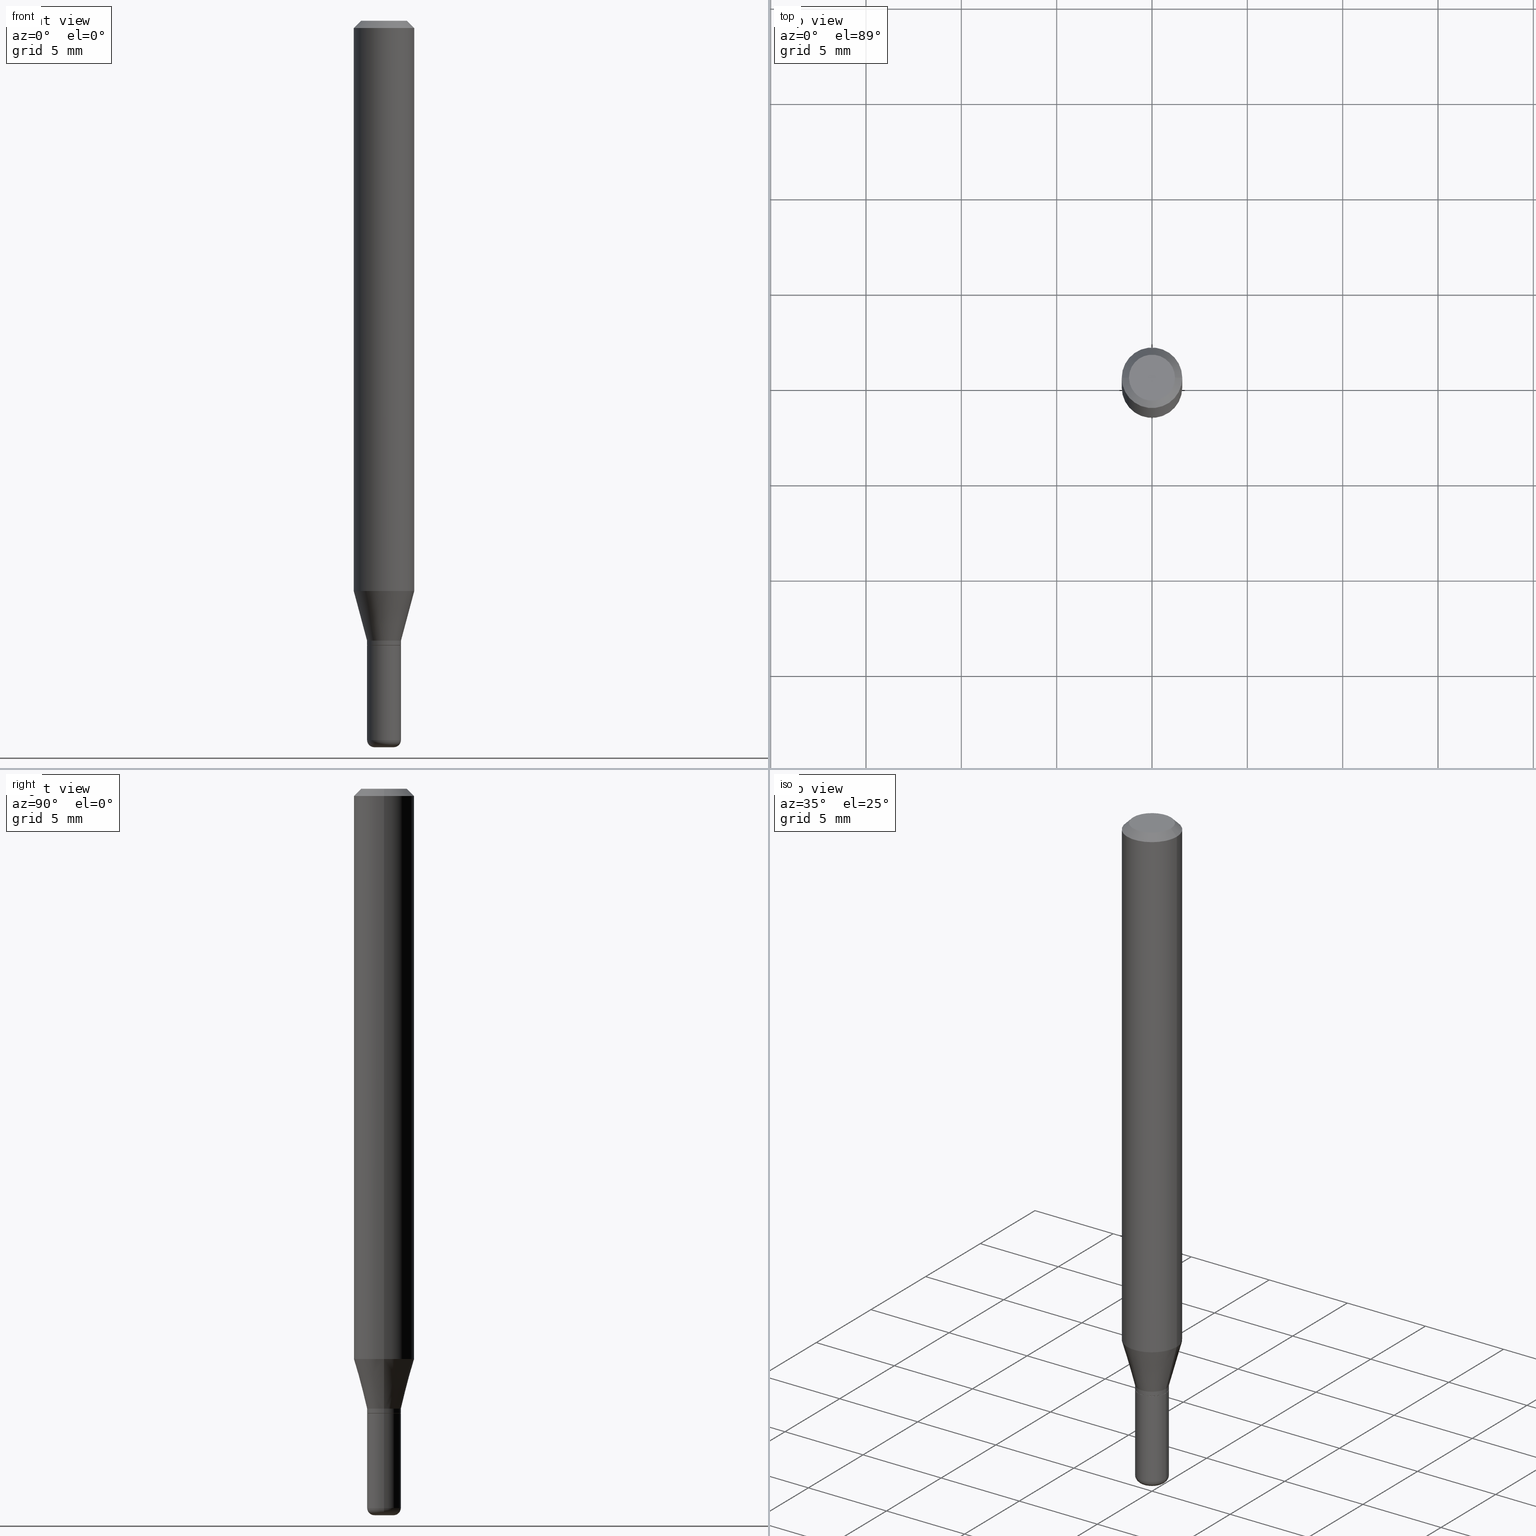
[diagram: canonical four-view strip — front | top / right | iso, engineering-drawing reading convention]
A machine part, canonical four-view strip (front | top / right | iso — engineering-drawing reading convention). The complete STEP part file that produces these views, byte-faithful:
ISO-10303-21;
HEADER;
FILE_DESCRIPTION (( 'STEP AP203' ),
    '1' );
FILE_NAME ('08691.STEP',
    '2024-02-29T20:24:12',
    ( '' ),
    ( '' ),
    'SwSTEP 2.0',
    'SolidWorks 2023',
    '' );
FILE_SCHEMA (( 'CONFIG_CONTROL_DESIGN' ));
ENDSEC;

DATA;
#1 = ORIENTED_EDGE ( 'NONE', *, *, #502, .T. ) ;
#2 = VECTOR ( 'NONE', #376, 39.37007874015748854 ) ;
#3 = PERSON_AND_ORGANIZATION_ROLE ( 'classification_officer' ) ;
#4 = AXIS2_PLACEMENT_3D ( 'NONE', #401, #397, #490 ) ;
#5 = CARTESIAN_POINT ( 'NONE',  ( 0.000000000000000000, 0.000000000000000000, 0.000000000000000000 ) ) ;
#6 = ADVANCED_FACE ( 'NONE', ( #446 ), #241, .T. ) ;
#7 = DIRECTION ( 'NONE',  ( -2.445468806185136877E-29, 3.491481338843145188E-15, 1.000000000000000000 ) ) ;
#8 = ORIENTED_EDGE ( 'NONE', *, *, #171, .F. ) ;
#9 = DIRECTION ( 'NONE',  ( 1.000000000000000000, -6.982962677686273021E-15, 0.000000000000000000 ) ) ;
#10 = CONICAL_SURFACE ( 'NONE', #136, 0.03499999999999998251, 0.2617993877991494633 ) ;
#11 = AXIS2_PLACEMENT_3D ( 'NONE', #61, #220, #9 ) ;
#12 = CARTESIAN_POINT ( 'NONE',  ( 3.154654759978826367E-29, -4.504010927107658279E-15, -1.290000000000000258 ) ) ;
#13 = CARTESIAN_POINT ( 'NONE',  ( 3.668203209277632395E-31, -5.237222008264614861E-17, -0.01499999999999970281 ) ) ;
#14 = APPROVAL_ROLE ( '' ) ;
#15 = ORIENTED_EDGE ( 'NONE', *, *, #337, .F. ) ;
#16 = CARTESIAN_POINT ( 'NONE',  ( -6.680649051745406845E-45, 9.538196290434862081E-31, 2.731847993664263218E-16 ) ) ;
#17 = APPROVAL ( #419, 'UNSPECIFIED' ) ;
#18 = DIRECTION ( 'NONE',  ( -2.445468806185136597E-29, 3.491481338843145583E-15, 1.000000000000000000 ) ) ;
#19 = CIRCLE ( 'NONE', #368, 0.03499999999999998945 ) ;
#20 = ORIENTED_EDGE ( 'NONE', *, *, #322, .T. ) ;
#21 = ORIENTED_EDGE ( 'NONE', *, *, #502, .F. ) ;
#22 = DIRECTION ( 'NONE',  ( -1.000000000000000000, 6.982962677686266711E-15, 0.000000000000000000 ) ) ;
#23 = VERTEX_POINT ( 'NONE', #96 ) ;
#24 = FACE_OUTER_BOUND ( 'NONE', #121, .T. ) ;
#25 = FACE_OUTER_BOUND ( 'NONE', #174, .T. ) ;
#26 = ORIENTED_EDGE ( 'NONE', *, *, #82, .F. ) ;
#27 = CARTESIAN_POINT ( 'NONE',  ( -0.03499999999999999639, -4.253575228922202278E-15, -1.289500000000000313 ) ) ;
#28 = CC_DESIGN_PERSON_AND_ORGANIZATION_ASSIGNMENT ( #85, #3, ( #321 ) ) ;
#29 = AXIS2_PLACEMENT_3D ( 'NONE', #5, #459, #373 ) ;
#30 = AXIS2_PLACEMENT_3D ( 'NONE', #274, #232, #425 ) ;
#31 = ORIENTED_EDGE ( 'NONE', *, *, #310, .T. ) ;
#32 = LOCAL_TIME ( 15, 24, 12.00000000000000000, #382 ) ;
#33 = CARTESIAN_POINT ( 'NONE',  ( 3.668203209277632395E-31, -5.237222008264614861E-17, -0.01499999999999970281 ) ) ;
#34 = DIRECTION ( 'NONE',  ( -2.445468806185136597E-29, 3.491481338843145583E-15, 1.000000000000000000 ) ) ;
#35 = ORIENTED_EDGE ( 'NONE', *, *, #109, .T. ) ;
#36 = EDGE_LOOP ( 'NONE', ( #328, #35 ) ) ;
#37 = VERTEX_POINT ( 'NONE', #297 ) ;
#38 = ADVANCED_FACE ( 'NONE', ( #380 ), #305, .T. ) ;
#39 = FACE_OUTER_BOUND ( 'NONE', #264, .T. ) ;
#40 = VECTOR ( 'NONE', #351, 39.37007874015748143 ) ;
#41 = APPLICATION_CONTEXT ( 'configuration controlled 3d designs of mechanical parts and assemblies' ) ;
#42 = EDGE_CURVE ( 'NONE', #71, #145, #495, .T. ) ;
#43 =( NAMED_UNIT ( * ) SI_UNIT ( $, .STERADIAN. ) SOLID_ANGLE_UNIT ( ) );
#44 = SECURITY_CLASSIFICATION_LEVEL ( 'unclassified' ) ;
#45 = DIRECTION ( 'NONE',  ( -2.445468806185136597E-29, 3.491481338843145583E-15, 1.000000000000000000 ) ) ;
#46 = FACE_OUTER_BOUND ( 'NONE', #469, .T. ) ;
#47 = AXIS2_PLACEMENT_3D ( 'NONE', #333, #208, #280 ) ;
#48 = VECTOR ( 'NONE', #475, 39.37007874015748143 ) ;
#49 = AXIS2_PLACEMENT_3D ( 'NONE', #58, #426, #22 ) ;
#50 = DIRECTION ( 'NONE',  ( 1.000000000000000000, -6.982962677686282488E-15, 0.000000000000000000 ) ) ;
#51 = ORIENTED_EDGE ( 'NONE', *, *, #42, .F. ) ;
#52 = LINE ( 'NONE', #169, #273 ) ;
#53 = CC_DESIGN_PERSON_AND_ORGANIZATION_ASSIGNMENT ( #157, #387, ( #377 ) ) ;
#54 = DIRECTION ( 'NONE',  ( 0.2588190451025207395, 1.565188264969626109E-15, 0.9659258262890682012 ) ) ;
#55 = CARTESIAN_POINT ( 'NONE',  ( 0.06250000000000000000, -4.811533449433669144E-16, -0.01499999999999970281 ) ) ;
#56 = CARTESIAN_POINT ( 'NONE',  ( 3.130200071916974821E-29, -4.469096113719226630E-15, -1.280000000000000027 ) ) ;
#57 = CIRCLE ( 'NONE', #211, 0.03499999999999998251 ) ;
#58 = CARTESIAN_POINT ( 'NONE',  ( 3.668203209277632395E-31, -5.237222008264614861E-17, -0.01499999999999970281 ) ) ;
#59 = PLANE ( 'NONE',  #473 ) ;
#60 = CARTESIAN_POINT ( 'NONE',  ( 3.154654759978826367E-29, -4.504010927107658279E-15, -1.290000000000000258 ) ) ;
#61 = CARTESIAN_POINT ( 'NONE',  ( 0.02000000000000000042, -5.324509041735797299E-15, -1.485000000000000098 ) ) ;
#62 = APPROVAL_DATE_TIME ( #416, #148 ) ;
#63 = ORIENTED_EDGE ( 'NONE', *, *, #171, .T. ) ;
#64 = VECTOR ( 'NONE', #301, 39.37007874015748143 ) ;
#65 = CARTESIAN_POINT ( 'NONE',  ( 3.316907271900976589E-16, 0.04750000000000000749, -2.925296391183627249E-17 ) ) ;
#66 = CONICAL_SURFACE ( 'NONE', #359, 0.03449999999999998901, 0.7853981633975507526 ) ;
#67 = ORIENTED_EDGE ( 'NONE', *, *, #135, .T. ) ;
#68 = LOCAL_TIME ( 15, 24, 12.00000000000000000, #213 ) ;
#69 = CARTESIAN_POINT ( 'NONE',  ( -0.06250000000000000000, 4.440892098500626162E-16, -3.074334431409316114E-30 ) ) ;
#70 = DIRECTION ( 'NONE',  ( 1.000000000000000000, -6.982962677686276966E-15, 0.000000000000000000 ) ) ;
#71 = VERTEX_POINT ( 'NONE', #102 ) ;
#72 = DIRECTION ( 'NONE',  ( -0.7071067811865479058, 2.468850131082261005E-15, -0.7071067811865471286 ) ) ;
#73 = AXIS2_PLACEMENT_3D ( 'NONE', #390, #217, #70 ) ;
#74 = AXIS2_PLACEMENT_3D ( 'NONE', #353, #438, #233 ) ;
#75 = CARTESIAN_POINT ( 'NONE',  ( -0.06250000000000000000, -3.666671295737530361E-15, -1.177368602791855734 ) ) ;
#76 = CONICAL_SURFACE ( 'NONE', #434, 0.03499999999999998251, 0.2617993877991494633 ) ;
#77 = ORIENTED_EDGE ( 'NONE', *, *, #251, .F. ) ;
#78 = ADVANCED_FACE ( 'NONE', ( #415 ), #10, .T. ) ;
#79 = DIRECTION ( 'NONE',  ( 1.000000000000000000, -6.982962677686266711E-15, 4.876176775795935793E-29 ) ) ;
#80 = CIRCLE ( 'NONE', #235, 0.04750000000000000749 ) ;
#81 = PRODUCT_DEFINITION_FORMATION_WITH_SPECIFIED_SOURCE ( 'ANY', '', #95, .NOT_KNOWN. ) ;
#82 = EDGE_CURVE ( 'NONE', #504, #178, #336, .T. ) ;
#83 = CARTESIAN_POINT ( 'NONE',  ( 0.000000000000000000, 0.000000000000000000, 0.000000000000000000 ) ) ;
#84 = ORIENTED_EDGE ( 'NONE', *, *, #355, .F. ) ;
#85 = PERSON_AND_ORGANIZATION ( #200, #137 ) ;
#86 = CARTESIAN_POINT ( 'NONE',  ( 3.668203209277704895E-29, -5.237222008264718177E-15, -1.500000000000000222 ) ) ;
#87 = DIRECTION ( 'NONE',  ( 2.438088387897960049E-29, -3.491481338843145188E-15, -1.000000000000000000 ) ) ;
#88 = DIRECTION ( 'NONE',  ( 0.000000000000000000, 0.000000000000000000, 1.000000000000000000 ) ) ;
#89 = AXIS2_PLACEMENT_3D ( 'NONE', #144, #354, #173 ) ;
#90 = CC_DESIGN_APPROVAL ( #327, ( #81 ) ) ;
#91 = ORIENTED_EDGE ( 'NONE', *, *, #139, .T. ) ;
#92 = EDGE_CURVE ( 'NONE', #221, #194, #372, .T. ) ;
#93 = DIRECTION ( 'NONE',  ( -1.000000000000000000, 6.982962677686265922E-15, -4.876176775795935793E-29 ) ) ;
#94 = CARTESIAN_POINT ( 'NONE',  ( -6.680649051745406845E-45, 9.538196290434862081E-31, 2.731847993664263218E-16 ) ) ;
#95 = PRODUCT ( '08691', '08691', '', ( #379 ) ) ;
#96 = CARTESIAN_POINT ( 'NONE',  ( 0.03449999999999998901, -4.744923139487834449E-15, -1.290000000000000258 ) ) ;
#97 = ORIENTED_EDGE ( 'NONE', *, *, #175, .F. ) ;
#98 = CARTESIAN_POINT ( 'NONE',  ( 0.06250000000000000000, -4.888073874380378612E-16, -0.01499999999999970281 ) ) ;
#99 = CARTESIAN_POINT ( 'NONE',  ( 3.154654759978826367E-29, -4.504010927107658279E-15, -1.290000000000000258 ) ) ;
#100 = DIRECTION ( 'NONE',  ( 1.000000000000000000, -6.982962677686265922E-15, 4.876176775795935793E-29 ) ) ;
#101 = LINE ( 'NONE', #427, #161 ) ;
#102 = CARTESIAN_POINT ( 'NONE',  ( -0.03449999999999998901, -4.256224456096312690E-15, -1.290000000000000258 ) ) ;
#103 = PERSON_AND_ORGANIZATION_ROLE ( 'design_owner' ) ;
#104 = CIRCLE ( 'NONE', #290, 0.02000000000000000389 ) ;
#105 = APPROVAL_PERSON_ORGANIZATION ( #256, #17, #357 ) ;
#106 = EDGE_LOOP ( 'NONE', ( #91, #366, #472, #84 ) ) ;
#107 = FACE_OUTER_BOUND ( 'NONE', #282, .T. ) ;
#108 = CARTESIAN_POINT ( 'NONE',  ( 3.153432025575734126E-29, -4.502265186438236775E-15, -1.289500000000000313 ) ) ;
#109 = EDGE_CURVE ( 'NONE', #196, #111, #308, .T. ) ;
#110 = ORIENTED_EDGE ( 'NONE', *, *, #92, .T. ) ;
#111 = VERTEX_POINT ( 'NONE', #435 ) ;
#112 = DIRECTION ( 'NONE',  ( -2.445468806185136597E-29, 3.491481338843145583E-15, 1.000000000000000000 ) ) ;
#113 = VECTOR ( 'NONE', #498, 39.37007874015748143 ) ;
#114 = EDGE_LOOP ( 'NONE', ( #369, #257, #352, #15 ) ) ;
#115 = LOCAL_TIME ( 15, 24, 12.00000000000000000, #294 ) ;
#116 = DIRECTION ( 'NONE',  ( -2.445468806185136877E-29, 3.491481338843145188E-15, 1.000000000000000000 ) ) ;
#117 = DIRECTION ( 'NONE',  ( -2.445468806185136597E-29, 3.491481338843145583E-15, 1.000000000000000000 ) ) ;
#118 = ADVANCED_FACE ( 'NONE', ( #25 ), #508, .T. ) ;
#119 = ORIENTED_EDGE ( 'NONE', *, *, #392, .T. ) ;
#120 = CARTESIAN_POINT ( 'NONE',  ( 3.153432025575734126E-29, -4.502265186438236775E-15, -1.289500000000000313 ) ) ;
#121 = EDGE_LOOP ( 'NONE', ( #514, #332, #8, #97 ) ) ;
#122 = CALENDAR_DATE ( 2024, 29, 2 ) ;
#123 = EDGE_CURVE ( 'NONE', #467, #405, #283, .T. ) ;
#124 = CIRCLE ( 'NONE', #409, 0.06250000000000000000 ) ;
#125 = VECTOR ( 'NONE', #116, 39.37007874015748143 ) ;
#126 = LOCAL_TIME ( 15, 24, 12.00000000000000000, #471 ) ;
#127 = CARTESIAN_POINT ( 'NONE',  ( 0.000000000000000000, 0.000000000000000000, 0.000000000000000000 ) ) ;
#128 = ORIENTED_EDGE ( 'NONE', *, *, #295, .T. ) ;
#129 = AXIS2_PLACEMENT_3D ( 'NONE', #197, #476, #279 ) ;
#130 = EDGE_CURVE ( 'NONE', #509, #178, #124, .T. ) ;
#131 = DIRECTION ( 'NONE',  ( -2.445468806185136597E-29, 3.491481338843145583E-15, 1.000000000000000000 ) ) ;
#132 = DATE_AND_TIME ( #335, #115 ) ;
#133 = DATE_AND_TIME ( #141, #32 ) ;
#134 = DIRECTION ( 'NONE',  ( 1.000000000000000000, -6.982962677686265133E-15, 0.000000000000000000 ) ) ;
#135 = EDGE_CURVE ( 'NONE', #23, #424, #278, .T. ) ;
#136 = AXIS2_PLACEMENT_3D ( 'NONE', #56, #212, #166 ) ;
#137 = ORGANIZATION ( 'UNSPECIFIED', 'UNSPECIFIED', '' ) ;
#138 = DIRECTION ( 'NONE',  ( 1.000000000000000000, -6.982962677686279332E-15, 4.883557194083117946E-29 ) ) ;
#139 = EDGE_CURVE ( 'NONE', #37, #504, #250, .T. ) ;
#140 = AXIS2_PLACEMENT_3D ( 'NONE', #86, #249, #50 ) ;
#141 = CALENDAR_DATE ( 2024, 29, 2 ) ;
#142 = CONICAL_SURFACE ( 'NONE', #49, 0.06250000000000000000, 0.7853981633974488341 ) ;
#143 = VERTEX_POINT ( 'NONE', #150 ) ;
#144 = CARTESIAN_POINT ( 'NONE',  ( 2.879218191509262057E-29, -4.110760505587592188E-15, -1.177368602791855734 ) ) ;
#145 = VERTEX_POINT ( 'NONE', #27 ) ;
#146 = LINE ( 'NONE', #507, #125 ) ;
#147 = EDGE_LOOP ( 'NONE', ( #1, #255 ) ) ;
#148 = APPROVAL ( #499, 'UNSPECIFIED' ) ;
#149 = FACE_OUTER_BOUND ( 'NONE', #114, .T. ) ;
#150 = CARTESIAN_POINT ( 'NONE',  ( -0.06250000000000000000, -1.637477152985056820E-15, -0.01499999999999970281 ) ) ;
#151 = AXIS2_PLACEMENT_3D ( 'NONE', #207, #331, #486 ) ;
#152 = ORIENTED_EDGE ( 'NONE', *, *, #139, .F. ) ;
#153 = CARTESIAN_POINT ( 'NONE',  ( -0.04750000000000000749, 3.578768372314221353E-16, 2.731847993664239060E-16 ) ) ;
#154 = CARTESIAN_POINT ( 'NONE',  ( 0.02000000000000000389, -5.376881261818443984E-15, -1.500000000000000222 ) ) ;
#155 = ORIENTED_EDGE ( 'NONE', *, *, #109, .F. ) ;
#156 = ORIENTED_EDGE ( 'NONE', *, *, #403, .F. ) ;
#157 = PERSON_AND_ORGANIZATION ( #200, #137 ) ;
#158 = ORIENTED_EDGE ( 'NONE', *, *, #470, .F. ) ;
#159 = CARTESIAN_POINT ( 'NONE',  ( -0.03499999999999999639, 2.486899575160350394E-16, -1.721627281589216757E-30 ) ) ;
#160 = EDGE_CURVE ( 'NONE', #178, #143, #468, .T. ) ;
#161 = VECTOR ( 'NONE', #383, 39.37007874015748143 ) ;
#162 = ORIENTED_EDGE ( 'NONE', *, *, #470, .T. ) ;
#163 = DIRECTION ( 'NONE',  ( -2.445468806185136597E-29, 3.491481338843145583E-15, 1.000000000000000000 ) ) ;
#164 = EDGE_CURVE ( 'NONE', #186, #143, #316, .T. ) ;
#165 = AXIS2_PLACEMENT_3D ( 'NONE', #349, #18, #344 ) ;
#166 = DIRECTION ( 'NONE',  ( 1.000000000000000000, -6.982962677686253300E-15, 0.000000000000000000 ) ) ;
#167 = ADVANCED_FACE ( 'NONE', ( #270 ), #76, .T. ) ;
#168 = CALENDAR_DATE ( 2024, 29, 2 ) ;
#169 = CARTESIAN_POINT ( 'NONE',  ( 0.03499999999999998251, -2.444036937190192264E-16, 1.706661871528576757E-30 ) ) ;
#170 = AXIS2_PLACEMENT_3D ( 'NONE', #371, #88, #299 ) ;
#171 = EDGE_CURVE ( 'NONE', #293, #143, #443, .T. ) ;
#172 = APPROVAL_STATUS ( 'not_yet_approved' ) ;
#173 = DIRECTION ( 'NONE',  ( 1.000000000000000000, -6.982962677686270655E-15, 0.000000000000000000 ) ) ;
#174 = EDGE_LOOP ( 'NONE', ( #323, #395, #362, #236 ) ) ;
#175 = EDGE_CURVE ( 'NONE', #509, #293, #441, .T. ) ;
#176 = DIRECTION ( 'NONE',  ( 1.000000000000000000, -6.982962677686253300E-15, 0.000000000000000000 ) ) ;
#177 = CARTESIAN_POINT ( 'NONE',  ( -0.03499999999999998251, -3.943538725970360852E-15, -1.280000000000000027 ) ) ;
#178 = VERTEX_POINT ( 'NONE', #75 ) ;
#179 = AXIS2_PLACEMENT_3D ( 'NONE', #127, #163, #79 ) ;
#180 = EDGE_LOOP ( 'NONE', ( #314, #437, #218, #436 ) ) ;
#181 = CARTESIAN_POINT ( 'NONE',  ( 0.03449999999999998901, -4.744923139487834449E-15, -1.290000000000000258 ) ) ;
#182 = DATE_AND_TIME ( #246, #68 ) ;
#183 = EDGE_CURVE ( 'NONE', #145, #424, #389, .T. ) ;
#184 = ORIENTED_EDGE ( 'NONE', *, *, #497, .T. ) ;
#185 = DIRECTION ( 'NONE',  ( -2.445468806185136597E-29, 3.491481338843145583E-15, 1.000000000000000000 ) ) ;
#186 = VERTEX_POINT ( 'NONE', #153 ) ;
#187 = ORIENTED_EDGE ( 'NONE', *, *, #337, .T. ) ;
#188 = CARTESIAN_POINT ( 'NONE',  ( 3.668203209277632395E-31, -5.237222008264614861E-17, -0.01499999999999970281 ) ) ;
#189 = CLOSED_SHELL ( 'NONE', ( #6, #338, #365, #38, #219, #417 ) ) ;
#190 = AXIS2_PLACEMENT_3D ( 'NONE', #33, #367, #192 ) ;
#191 = DIRECTION ( 'NONE',  ( -2.445468806185136597E-29, 3.491481338843145583E-15, 1.000000000000000000 ) ) ;
#192 = DIRECTION ( 'NONE',  ( -1.000000000000000000, 6.982962677686266711E-15, 0.000000000000000000 ) ) ;
#193 = EDGE_CURVE ( 'NONE', #194, #221, #104, .T. ) ;
#194 = VERTEX_POINT ( 'NONE', #154 ) ;
#195 = FACE_OUTER_BOUND ( 'NONE', #350, .T. ) ;
#196 = VERTEX_POINT ( 'NONE', #444 ) ;
#197 = CARTESIAN_POINT ( 'NONE',  ( 3.582686580359766038E-29, -5.359686688179453325E-15, -1.500000000000000222 ) ) ;
#198 = AXIS2_PLACEMENT_3D ( 'NONE', #65, #462, #214 ) ;
#199 = ORIENTED_EDGE ( 'NONE', *, *, #355, .T. ) ;
#200 = PERSON ( 'UNSPECIFIED', 'UNSPECIFIED', 'UNSPECIFIED', ('UNSPECIFIED'), ('UNSPECIFIED'), ('UNSPECIFIED') ) ;
#201 = ORIENTED_EDGE ( 'NONE', *, *, #287, .F. ) ;
#202 = CARTESIAN_POINT ( 'NONE',  ( -0.03449999999999998901, -4.258873683270423891E-15, -1.290000000000000258 ) ) ;
#203 = CARTESIAN_POINT ( 'NONE',  ( 3.154654759978826367E-29, -4.504010927107658279E-15, -1.290000000000000258 ) ) ;
#204 = AXIS2_PLACEMENT_3D ( 'NONE', #245, #131, #442 ) ;
#205 = AXIS2_PLACEMENT_3D ( 'NONE', #16, #216, #430 ) ;
#206 = ADVANCED_FACE ( 'NONE', ( #39 ), #518, .T. ) ;
#207 = CARTESIAN_POINT ( 'NONE',  ( 0.000000000000000000, 0.000000000000000000, 0.000000000000000000 ) ) ;
#208 = DIRECTION ( 'NONE',  ( -2.445468806185136597E-29, 3.491481338843145583E-15, 1.000000000000000000 ) ) ;
#209 = FACE_OUTER_BOUND ( 'NONE', #36, .T. ) ;
#210 = DIRECTION ( 'NONE',  ( -2.438088387897960049E-29, 3.491481338843145188E-15, 1.000000000000000000 ) ) ;
#211 = AXIS2_PLACEMENT_3D ( 'NONE', #414, #117, #176 ) ;
#212 = DIRECTION ( 'NONE',  ( -2.445468806185136597E-29, 3.491481338843145583E-15, 1.000000000000000000 ) ) ;
#213 = COORDINATED_UNIVERSAL_TIME_OFFSET ( 5, 0, .BEHIND. ) ;
#214 = DIRECTION ( 'NONE',  ( -1.000000000000000000, 6.982962677686265922E-15, -4.876176775795935793E-29 ) ) ;
#215 = EDGE_CURVE ( 'NONE', #111, #196, #488, .T. ) ;
#216 = DIRECTION ( 'NONE',  ( -2.445468806185136597E-29, 3.491481338843145583E-15, 1.000000000000000000 ) ) ;
#217 = DIRECTION ( 'NONE',  ( -2.445468806185136597E-29, 3.491481338843145583E-15, 1.000000000000000000 ) ) ;
#218 = ORIENTED_EDGE ( 'NONE', *, *, #175, .T. ) ;
#219 = ADVANCED_FACE ( 'NONE', ( #195 ), #500, .T. ) ;
#220 = DIRECTION ( 'NONE',  ( -6.982962677686266711E-15, -1.000000000000000000, 3.491481338843145583E-15 ) ) ;
#221 = VERTEX_POINT ( 'NONE', #258 ) ;
#222 = CC_DESIGN_PERSON_AND_ORGANIZATION_ASSIGNMENT ( #400, #103, ( #95 ) ) ;
#223 = DIRECTION ( 'NONE',  ( 7.105427357601001859E-15, 1.000000000000000000, -3.491481338843145583E-15 ) ) ;
#224 = AXIS2_PLACEMENT_3D ( 'NONE', #12, #465, #226 ) ;
#225 = LOCAL_TIME ( 15, 24, 12.00000000000000000, #302 ) ;
#226 = DIRECTION ( 'NONE',  ( 1.000000000000000000, -6.982962677686265133E-15, 0.000000000000000000 ) ) ;
#227 = CARTESIAN_POINT ( 'NONE',  ( -0.06250000000000000000, 3.840629472727455270E-16, -0.01499999999999970281 ) ) ;
#228 = DATE_AND_TIME ( #122, #126 ) ;
#229 = DIRECTION ( 'NONE',  ( -2.445468806185136597E-29, 3.491481338843145583E-15, 1.000000000000000000 ) ) ;
#230 = DIRECTION ( 'NONE',  ( -1.000000000000000000, 7.105427357600996337E-15, 0.000000000000000000 ) ) ;
#231 = ADVANCED_BREP_SHAPE_REPRESENTATION ( '08691', ( #275, #451, #170 ), #340 ) ;
#232 = DIRECTION ( 'NONE',  ( -2.445468806185136597E-29, 3.491481338843145583E-15, 1.000000000000000000 ) ) ;
#233 = DIRECTION ( 'NONE',  ( 1.000000000000000000, -6.982962677686253300E-15, 0.000000000000000000 ) ) ;
#234 = DIRECTION ( 'NONE',  ( -2.445468806185136597E-29, 3.491481338843145583E-15, 1.000000000000000000 ) ) ;
#235 = AXIS2_PLACEMENT_3D ( 'NONE', #94, #248, #254 ) ;
#236 = ORIENTED_EDGE ( 'NONE', *, *, #295, .F. ) ;
#237 = DIRECTION ( 'NONE',  ( 1.000000000000000000, -6.982962677686266711E-15, 0.000000000000000000 ) ) ;
#238 = ORIENTED_EDGE ( 'NONE', *, *, #183, .F. ) ;
#239 = CC_DESIGN_DATE_AND_TIME_ASSIGNMENT ( #132, #489, ( #321 ) ) ;
#240 = PERSON_AND_ORGANIZATION ( #200, #137 ) ;
#241 = TOROIDAL_SURFACE ( 'NONE', #271, 0.02000000000000000042, 0.01499999999999998904 ) ;
#242 = AXIS2_PLACEMENT_3D ( 'NONE', #120, #234, #394 ) ;
#243 = PERSON_AND_ORGANIZATION ( #200, #137 ) ;
#244 = CARTESIAN_POINT ( 'NONE',  ( 0.03499999999999999639, -4.746668880157256741E-15, -1.289500000000000313 ) ) ;
#245 = CARTESIAN_POINT ( 'NONE',  ( 3.154654759978826367E-29, -4.504010927107658279E-15, -1.290000000000000258 ) ) ;
#246 = CALENDAR_DATE ( 2024, 29, 2 ) ;
#247 = CARTESIAN_POINT ( 'NONE',  ( 2.444036937190508794E-16, 0.03499999999999549999, -1.290000000000000258 ) ) ;
#248 = DIRECTION ( 'NONE',  ( -2.445468806185136597E-29, 3.491481338843145583E-15, 1.000000000000000000 ) ) ;
#249 = DIRECTION ( 'NONE',  ( -2.445468806185136597E-29, 3.491481338843145583E-15, 1.000000000000000000 ) ) ;
#250 = CIRCLE ( 'NONE', #74, 0.03499999999999998251 ) ;
#251 = EDGE_CURVE ( 'NONE', #447, #186, #80, .T. ) ;
#252 = CIRCLE ( 'NONE', #165, 0.03449999999999998901 ) ;
#253 = APPROVAL_PERSON_ORGANIZATION ( #240, #327, #304 ) ;
#254 = DIRECTION ( 'NONE',  ( 1.000000000000000000, -6.982962677686266711E-15, 4.852736867747365086E-29 ) ) ;
#255 = ORIENTED_EDGE ( 'NONE', *, *, #251, .T. ) ;
#256 = PERSON_AND_ORGANIZATION ( #200, #137 ) ;
#257 = ORIENTED_EDGE ( 'NONE', *, *, #319, .T. ) ;
#258 = CARTESIAN_POINT ( 'NONE',  ( -0.02000000000000000389, -5.015636645889366715E-15, -1.500000000000000222 ) ) ;
#259 = CLOSED_SHELL ( 'NONE', ( #206, #450, #493, #406, #167, #78, #268, #423, #463, #485, #348, #118 ) ) ;
#260 = CIRCLE ( 'NONE', #339, 0.03499999999999999639 ) ;
#261 = APPLICATION_CONTEXT ( 'configuration controlled 3d designs of mechanical parts and assemblies' ) ;
#262 = FACE_OUTER_BOUND ( 'NONE', #505, .T. ) ;
#263 = EDGE_CURVE ( 'NONE', #424, #37, #52, .T. ) ;
#264 = EDGE_LOOP ( 'NONE', ( #31, #492, #152, #516 ) ) ;
#265 = CYLINDRICAL_SURFACE ( 'NONE', #30, 0.03499999999999999639 ) ;
#266 = LINE ( 'NONE', #159, #40 ) ;
#267 = CARTESIAN_POINT ( 'NONE',  ( 0.03499999999999998251, -4.713499807438245807E-15, -1.280000000000000027 ) ) ;
#268 = ADVANCED_FACE ( 'NONE', ( #494 ), #291, .T. ) ;
#269 = ORIENTED_EDGE ( 'NONE', *, *, #453, .F. ) ;
#270 = FACE_OUTER_BOUND ( 'NONE', #106, .T. ) ;
#271 = AXIS2_PLACEMENT_3D ( 'NONE', #306, #408, #138 ) ;
#272 = DIRECTION ( 'NONE',  ( 1.000000000000000000, -6.982962677686266711E-15, 0.000000000000000000 ) ) ;
#273 = VECTOR ( 'NONE', #7, 39.37007874015748143 ) ;
#274 = CARTESIAN_POINT ( 'NONE',  ( 0.000000000000000000, 0.000000000000000000, 0.000000000000000000 ) ) ;
#275 = MANIFOLD_SOLID_BREP ( 'Body-Move/Copy2[1]', #189 ) ;
#276 = CYLINDRICAL_SURFACE ( 'NONE', #179, 0.06250000000000000000 ) ;
#277 = ORIENTED_EDGE ( 'NONE', *, *, #135, .F. ) ;
#278 = LINE ( 'NONE', #181, #483 ) ;
#279 = DIRECTION ( 'NONE',  ( 1.000000000000000000, -6.982962677686265922E-15, 4.876176775795935793E-29 ) ) ;
#280 = DIRECTION ( 'NONE',  ( 1.000000000000000000, -6.982962677686266711E-15, 4.876176775795935793E-29 ) ) ;
#281 = DIRECTION ( 'NONE',  ( 1.000000000000000000, -6.982962677686282488E-15, 0.000000000000000000 ) ) ;
#282 = EDGE_LOOP ( 'NONE', ( #51, #162, #67, #238 ) ) ;
#283 = CIRCLE ( 'NONE', #345, 0.03499999999999998945 ) ;
#284 = AXIS2_PLACEMENT_3D ( 'NONE', #13, #386, #272 ) ;
#285 = CC_DESIGN_SECURITY_CLASSIFICATION ( #321, ( #81 ) ) ;
#286 = APPLICATION_PROTOCOL_DEFINITION ( 'international standard', 'config_control_design', 1994, #41 ) ;
#287 = EDGE_CURVE ( 'NONE', #447, #293, #300, .T. ) ;
#288 = ORIENTED_EDGE ( 'NONE', *, *, #164, .F. ) ;
#289 = PLANE ( 'NONE',  #129 ) ;
#290 = AXIS2_PLACEMENT_3D ( 'NONE', #479, #191, #281 ) ;
#291 = CYLINDRICAL_SURFACE ( 'NONE', #491, 0.06250000000000000000 ) ;
#292 = PERSON_AND_ORGANIZATION ( #200, #137 ) ;
#293 = VERTEX_POINT ( 'NONE', #98 ) ;
#294 = COORDINATED_UNIVERSAL_TIME_OFFSET ( 5, 0, .BEHIND. ) ;
#295 = EDGE_CURVE ( 'NONE', #504, #37, #57, .T. ) ;
#296 = CARTESIAN_POINT ( 'NONE',  ( 0.04750000000000000749, -4.035134999187568762E-16, 2.731847993664288856E-16 ) ) ;
#297 = CARTESIAN_POINT ( 'NONE',  ( 0.03499999999999998251, -4.713499807438245807E-15, -1.280000000000000027 ) ) ;
#298 = CC_DESIGN_PERSON_AND_ORGANIZATION_ASSIGNMENT ( #487, #407, ( #81 ) ) ;
#299 = DIRECTION ( 'NONE',  ( 1.000000000000000000, 0.000000000000000000, 0.000000000000000000 ) ) ;
#300 = LINE ( 'NONE', #55, #113 ) ;
#301 = DIRECTION ( 'NONE',  ( -0.7071067811866199593, 7.493145998870616062E-15, 0.7071067811864750752 ) ) ;
#302 = COORDINATED_UNIVERSAL_TIME_OFFSET ( 5, 0, .BEHIND. ) ;
#303 = PLANE ( 'NONE',  #396 ) ;
#304 = APPROVAL_ROLE ( '' ) ;
#305 = CYLINDRICAL_SURFACE ( 'NONE', #29, 0.03499999999999999639 ) ;
#306 = CARTESIAN_POINT ( 'NONE',  ( 3.631521177184928138E-29, -5.184849788182071492E-15, -1.485000000000000098 ) ) ;
#307 = CARTESIAN_POINT ( 'NONE',  ( 2.879218191509262057E-29, -4.110760505587592188E-15, -1.177368602791855734 ) ) ;
#308 = CIRCLE ( 'NONE', #73, 0.03500000000000000333 ) ;
#309 = VECTOR ( 'NONE', #54, 39.37007874015748854 ) ;
#310 = EDGE_CURVE ( 'NONE', #424, #145, #260, .T. ) ;
#311 = ORIENTED_EDGE ( 'NONE', *, *, #123, .F. ) ;
#312 =( LENGTH_UNIT ( ) NAMED_UNIT ( * ) SI_UNIT ( $, .METRE. ) );
#313 = CARTESIAN_POINT ( 'NONE',  ( -0.02000000000000000042, -5.042741241030051329E-15, -1.485000000000000098 ) ) ;
#314 = ORIENTED_EDGE ( 'NONE', *, *, #160, .F. ) ;
#315 = DIRECTION ( 'NONE',  ( -2.445468806185136597E-29, 3.491481338843145583E-15, 1.000000000000000000 ) ) ;
#316 = LINE ( 'NONE', #227, #374 ) ;
#317 = ORIENTED_EDGE ( 'NONE', *, *, #42, .T. ) ;
#318 = DIRECTION ( 'NONE',  ( -2.445468806185136597E-29, 3.491481338843145583E-15, 1.000000000000000000 ) ) ;
#319 = EDGE_CURVE ( 'NONE', #405, #196, #266, .T. ) ;
#320 = AXIS2_PLACEMENT_3D ( 'NONE', #203, #411, #134 ) ;
#321 = SECURITY_CLASSIFICATION ( '', '', #44 ) ;
#322 = EDGE_CURVE ( 'NONE', #23, #71, #346, .T. ) ;
#323 = ORIENTED_EDGE ( 'NONE', *, *, #385, .F. ) ;
#324 = DIRECTION ( 'NONE',  ( 1.000000000000000000, -6.982962677686253300E-15, 0.000000000000000000 ) ) ;
#325 = EDGE_LOOP ( 'NONE', ( #26, #128, #199, #484 ) ) ;
#326 = CIRCLE ( 'NONE', #89, 0.06250000000000000000 ) ;
#327 = APPROVAL ( #172, 'UNSPECIFIED' ) ;
#328 = ORIENTED_EDGE ( 'NONE', *, *, #215, .T. ) ;
#329 = ORIENTED_EDGE ( 'NONE', *, *, #453, .T. ) ;
#330 = APPROVAL_DATE_TIME ( #133, #327 ) ;
#331 = DIRECTION ( 'NONE',  ( -2.445468806185136597E-29, 3.491481338843145583E-15, 1.000000000000000000 ) ) ;
#332 = ORIENTED_EDGE ( 'NONE', *, *, #160, .T. ) ;
#333 = CARTESIAN_POINT ( 'NONE',  ( 0.000000000000000000, 0.000000000000000000, 0.000000000000000000 ) ) ;
#334 = CONICAL_SURFACE ( 'NONE', #320, 0.03449999999999998901, 0.7853981633975507526 ) ;
#335 = CALENDAR_DATE ( 2024, 29, 2 ) ;
#336 = LINE ( 'NONE', #452, #2 ) ;
#337 = EDGE_CURVE ( 'NONE', #467, #111, #146, .T. ) ;
#338 = ADVANCED_FACE ( 'NONE', ( #149 ), #265, .T. ) ;
#339 = AXIS2_PLACEMENT_3D ( 'NONE', #108, #229, #358 ) ;
#340 =( GEOMETRIC_REPRESENTATION_CONTEXT ( 3 ) GLOBAL_UNCERTAINTY_ASSIGNED_CONTEXT ( ( #342 ) ) GLOBAL_UNIT_ASSIGNED_CONTEXT ( ( #478, #480, #43 ) ) REPRESENTATION_CONTEXT ( 'NONE', 'WORKASPACE' ) );
#341 = DIMENSIONAL_EXPONENTS ( 1.000000000000000000, 0.000000000000000000, 0.000000000000000000, 0.000000000000000000, 0.000000000000000000, 0.000000000000000000, 0.000000000000000000 ) ;
#342 = UNCERTAINTY_MEASURE_WITH_UNIT (LENGTH_MEASURE( 1.000000000000000082E-05 ), #478, 'distance_accuracy_value', 'NONE');
#343 = DIRECTION ( 'NONE',  ( 1.000000000000000000, -6.982962677686266711E-15, 4.876176775795935793E-29 ) ) ;
#344 = DIRECTION ( 'NONE',  ( 1.000000000000000000, -6.982962677686265133E-15, 0.000000000000000000 ) ) ;
#345 = AXIS2_PLACEMENT_3D ( 'NONE', #513, #34, #457 ) ;
#346 = CIRCLE ( 'NONE', #224, 0.03449999999999998901 ) ;
#347 = CARTESIAN_POINT ( 'NONE',  ( 0.06250000000000000000, -4.547195672942984647E-15, -1.177368602791855734 ) ) ;
#348 = ADVANCED_FACE ( 'NONE', ( #107 ), #66, .T. ) ;
#349 = CARTESIAN_POINT ( 'NONE',  ( 3.154654759978826367E-29, -4.504010927107658279E-15, -1.290000000000000258 ) ) ;
#350 = EDGE_LOOP ( 'NONE', ( #156, #110, #184, #269 ) ) ;
#351 = DIRECTION ( 'NONE',  ( -2.445468806185136877E-29, 3.491481338843145188E-15, 1.000000000000000000 ) ) ;
#352 = ORIENTED_EDGE ( 'NONE', *, *, #215, .F. ) ;
#353 = CARTESIAN_POINT ( 'NONE',  ( 3.130200071916974821E-29, -4.469096113719226630E-15, -1.280000000000000027 ) ) ;
#354 = DIRECTION ( 'NONE',  ( -2.445468806185136597E-29, 3.491481338843145583E-15, 1.000000000000000000 ) ) ;
#355 = EDGE_CURVE ( 'NONE', #37, #509, #422, .T. ) ;
#356 = CARTESIAN_POINT ( 'NONE',  ( 0.06250000000000000000, -4.364351673553916694E-16, 3.047610484872459871E-30 ) ) ;
#357 = APPROVAL_ROLE ( '' ) ;
#358 = DIRECTION ( 'NONE',  ( 1.000000000000000000, -6.982962677686278543E-15, 0.000000000000000000 ) ) ;
#359 = AXIS2_PLACEMENT_3D ( 'NONE', #60, #315, #461 ) ;
#360 = DATE_TIME_ROLE ( 'creation_date' ) ;
#361 = EDGE_LOOP ( 'NONE', ( #445, #428 ) ) ;
#362 = ORIENTED_EDGE ( 'NONE', *, *, #263, .T. ) ;
#363 = APPROVAL_DATE_TIME ( #228, #17 ) ;
#364 = DESIGN_CONTEXT ( 'detailed design', #261, 'design' ) ;
#365 = ADVANCED_FACE ( 'NONE', ( #209 ), #303, .F. ) ;
#366 = ORIENTED_EDGE ( 'NONE', *, *, #82, .T. ) ;
#367 = DIRECTION ( 'NONE',  ( 2.445468806185136597E-29, -3.491481338843145583E-15, -1.000000000000000000 ) ) ;
#368 = AXIS2_PLACEMENT_3D ( 'NONE', #455, #112, #506 ) ;
#369 = ORIENTED_EDGE ( 'NONE', *, *, #123, .T. ) ;
#370 = PERSON_AND_ORGANIZATION_ROLE ( 'creator' ) ;
#371 = CARTESIAN_POINT ( 'NONE',  ( 0.000000000000000000, 0.000000000000000000, 0.000000000000000000 ) ) ;
#372 = CIRCLE ( 'NONE', #140, 0.02000000000000000389 ) ;
#373 = DIRECTION ( 'NONE',  ( 1.000000000000000000, -6.982962677686265922E-15, 4.876176775795936353E-29 ) ) ;
#374 = VECTOR ( 'NONE', #72, 39.37007874015748143 ) ;
#375 = VECTOR ( 'NONE', #429, 39.37007874015748143 ) ;
#376 = DIRECTION ( 'NONE',  ( -0.2588190451025207395, 5.211531920934546309E-15, 0.9659258262890682012 ) ) ;
#377 = PRODUCT_DEFINITION ( 'UNKNOWN', '', #81, #364 ) ;
#378 = APPLICATION_PROTOCOL_DEFINITION ( 'international standard', 'config_control_design', 1994, #261 ) ;
#379 = MECHANICAL_CONTEXT ( 'NONE', #41, 'mechanical' ) ;
#380 = FACE_OUTER_BOUND ( 'NONE', #496, .T. ) ;
#381 = CARTESIAN_POINT ( 'NONE',  ( 0.03499999999999998945, -5.429253481901091458E-15, -1.485000000000000098 ) ) ;
#382 = COORDINATED_UNIVERSAL_TIME_OFFSET ( 5, 0, .BEHIND. ) ;
#383 = DIRECTION ( 'NONE',  ( -2.445468806185136877E-29, 3.491481338843145188E-15, 1.000000000000000000 ) ) ;
#384 = EDGE_LOOP ( 'NONE', ( #77, #481, #63, #288 ) ) ;
#385 = EDGE_CURVE ( 'NONE', #145, #504, #101, .T. ) ;
#386 = DIRECTION ( 'NONE',  ( -2.445468806185136597E-29, 3.491481338843145583E-15, 1.000000000000000000 ) ) ;
#387 = PERSON_AND_ORGANIZATION_ROLE ( 'creator' ) ;
#388 = DIRECTION ( 'NONE',  ( 0.7071067811866199593, -2.468850131083015945E-15, 0.7071067811864750752 ) ) ;
#389 = CIRCLE ( 'NONE', #242, 0.03499999999999999639 ) ;
#390 = CARTESIAN_POINT ( 'NONE',  ( 3.154654759978826367E-29, -4.504010927107658279E-15, -1.290000000000000258 ) ) ;
#391 = CARTESIAN_POINT ( 'NONE',  ( -0.03499999999999998945, -4.595740400128830388E-15, -1.485000000000000098 ) ) ;
#392 = EDGE_CURVE ( 'NONE', #143, #293, #510, .T. ) ;
#393 = DIRECTION ( 'NONE',  ( 1.000000000000000000, -6.982962677686270655E-15, 0.000000000000000000 ) ) ;
#394 = DIRECTION ( 'NONE',  ( 1.000000000000000000, -6.982962677686278543E-15, 0.000000000000000000 ) ) ;
#395 = ORIENTED_EDGE ( 'NONE', *, *, #183, .T. ) ;
#396 = AXIS2_PLACEMENT_3D ( 'NONE', #247, #87, #93 ) ;
#397 = DIRECTION ( 'NONE',  ( -2.445468806185136597E-29, 3.491481338843145583E-15, 1.000000000000000000 ) ) ;
#398 = ORIENTED_EDGE ( 'NONE', *, *, #164, .T. ) ;
#399 = FACE_OUTER_BOUND ( 'NONE', #361, .T. ) ;
#400 = PERSON_AND_ORGANIZATION ( #200, #137 ) ;
#401 = CARTESIAN_POINT ( 'NONE',  ( 3.631521177184928138E-29, -5.184849788182071492E-15, -1.485000000000000098 ) ) ;
#402 = AXIS2_PLACEMENT_3D ( 'NONE', #313, #223, #230 ) ;
#403 = EDGE_CURVE ( 'NONE', #221, #405, #410, .T. ) ;
#404 = APPROVAL_PERSON_ORGANIZATION ( #292, #148, #14 ) ;
#405 = VERTEX_POINT ( 'NONE', #391 ) ;
#406 = ADVANCED_FACE ( 'NONE', ( #24 ), #276, .T. ) ;
#407 = PERSON_AND_ORGANIZATION_ROLE ( 'design_supplier' ) ;
#408 = DIRECTION ( 'NONE',  ( -2.445468806185136597E-29, 3.491481338843145583E-15, 1.000000000000000000 ) ) ;
#409 = AXIS2_PLACEMENT_3D ( 'NONE', #307, #185, #393 ) ;
#410 = CIRCLE ( 'NONE', #402, 0.01499999999999998904 ) ;
#411 = DIRECTION ( 'NONE',  ( -2.445468806185136597E-29, 3.491481338843145583E-15, 1.000000000000000000 ) ) ;
#412 = CC_DESIGN_DATE_AND_TIME_ASSIGNMENT ( #182, #360, ( #377 ) ) ;
#413 = PLANE ( 'NONE',  #198 ) ;
#414 = CARTESIAN_POINT ( 'NONE',  ( 3.130200071916974821E-29, -4.469096113719226630E-15, -1.280000000000000027 ) ) ;
#415 = FACE_OUTER_BOUND ( 'NONE', #325, .T. ) ;
#416 = DATE_AND_TIME ( #168, #225 ) ;
#417 = ADVANCED_FACE ( 'NONE', ( #399 ), #289, .F. ) ;
#418 = CONICAL_SURFACE ( 'NONE', #190, 0.06250000000000000000, 0.7853981633974488341 ) ;
#419 = APPROVAL_STATUS ( 'not_yet_approved' ) ;
#420 = FACE_OUTER_BOUND ( 'NONE', #384, .T. ) ;
#421 = SHAPE_DEFINITION_REPRESENTATION ( #454, #231 ) ;
#422 = LINE ( 'NONE', #267, #309 ) ;
#423 = ADVANCED_FACE ( 'NONE', ( #439 ), #418, .T. ) ;
#424 = VERTEX_POINT ( 'NONE', #244 ) ;
#425 = DIRECTION ( 'NONE',  ( 1.000000000000000000, -6.982962677686265922E-15, 4.876176775795936353E-29 ) ) ;
#426 = DIRECTION ( 'NONE',  ( 2.445468806185136597E-29, -3.491481338843145583E-15, -1.000000000000000000 ) ) ;
#427 = CARTESIAN_POINT ( 'NONE',  ( -0.03499999999999998251, 2.486899575160349408E-16, -1.721627281589216057E-30 ) ) ;
#428 = ORIENTED_EDGE ( 'NONE', *, *, #92, .F. ) ;
#429 = DIRECTION ( 'NONE',  ( -2.445468806185136877E-29, 3.491481338843145188E-15, 1.000000000000000000 ) ) ;
#430 = DIRECTION ( 'NONE',  ( 1.000000000000000000, -6.982962677686266711E-15, 4.852736867747365086E-29 ) ) ;
#431 = FACE_OUTER_BOUND ( 'NONE', #147, .T. ) ;
#432 = ORIENTED_EDGE ( 'NONE', *, *, #310, .F. ) ;
#433 = CARTESIAN_POINT ( 'NONE',  ( 3.130200071916974821E-29, -4.469096113719226630E-15, -1.280000000000000027 ) ) ;
#434 = AXIS2_PLACEMENT_3D ( 'NONE', #433, #318, #324 ) ;
#435 = CARTESIAN_POINT ( 'NONE',  ( 0.03500000000000000333, -4.748414620826678245E-15, -1.290000000000000258 ) ) ;
#436 = ORIENTED_EDGE ( 'NONE', *, *, #392, .F. ) ;
#437 = ORIENTED_EDGE ( 'NONE', *, *, #477, .T. ) ;
#438 = DIRECTION ( 'NONE',  ( -2.445468806185136597E-29, 3.491481338843145583E-15, 1.000000000000000000 ) ) ;
#439 = FACE_OUTER_BOUND ( 'NONE', #460, .T. ) ;
#440 = EDGE_LOOP ( 'NONE', ( #456, #503, #311, #482 ) ) ;
#441 = LINE ( 'NONE', #356, #48 ) ;
#442 = DIRECTION ( 'NONE',  ( 1.000000000000000000, -6.982962677686276966E-15, 0.000000000000000000 ) ) ;
#443 = CIRCLE ( 'NONE', #449, 0.06250000000000000000 ) ;
#444 = CARTESIAN_POINT ( 'NONE',  ( -0.03500000000000000333, -4.595740400128830388E-15, -1.290000000000000258 ) ) ;
#445 = ORIENTED_EDGE ( 'NONE', *, *, #193, .F. ) ;
#446 = FACE_OUTER_BOUND ( 'NONE', #440, .T. ) ;
#447 = VERTEX_POINT ( 'NONE', #296 ) ;
#448 = PRODUCT_RELATED_PRODUCT_CATEGORY ( 'detail', '', ( #95 ) ) ;
#449 = AXIS2_PLACEMENT_3D ( 'NONE', #188, #511, #237 ) ;
#450 = ADVANCED_FACE ( 'NONE', ( #46 ), #334, .T. ) ;
#451 = MANIFOLD_SOLID_BREP ( 'Body-Move/Copy2[2]', #259 ) ;
#452 = CARTESIAN_POINT ( 'NONE',  ( -0.03499999999999998251, -4.220406156203192133E-15, -1.280000000000000027 ) ) ;
#453 = EDGE_CURVE ( 'NONE', #405, #467, #19, .T. ) ;
#454 = PRODUCT_DEFINITION_SHAPE ( 'NONE', 'NONE',  #377 ) ;
#455 = CARTESIAN_POINT ( 'NONE',  ( 3.631521177184928138E-29, -5.184849788182071492E-15, -1.485000000000000098 ) ) ;
#456 = ORIENTED_EDGE ( 'NONE', *, *, #193, .T. ) ;
#457 = DIRECTION ( 'NONE',  ( 1.000000000000000000, -6.982962677686280121E-15, 0.000000000000000000 ) ) ;
#458 = LENGTH_MEASURE_WITH_UNIT ( LENGTH_MEASURE( 0.02539999999999999897 ), #312 );
#459 = DIRECTION ( 'NONE',  ( -2.445468806185136597E-29, 3.491481338843145583E-15, 1.000000000000000000 ) ) ;
#460 = EDGE_LOOP ( 'NONE', ( #201, #21, #398, #119 ) ) ;
#461 = DIRECTION ( 'NONE',  ( 1.000000000000000000, -6.982962677686265133E-15, 0.000000000000000000 ) ) ;
#462 = DIRECTION ( 'NONE',  ( 2.438088387897960049E-29, -3.491481338843145188E-15, -1.000000000000000000 ) ) ;
#463 = ADVANCED_FACE ( 'NONE', ( #431 ), #413, .F. ) ;
#464 = CIRCLE ( 'NONE', #11, 0.01499999999999998904 ) ;
#465 = DIRECTION ( 'NONE',  ( -2.445468806185136597E-29, 3.491481338843145583E-15, 1.000000000000000000 ) ) ;
#466 = CC_DESIGN_APPROVAL ( #17, ( #377 ) ) ;
#467 = VERTEX_POINT ( 'NONE', #381 ) ;
#468 = LINE ( 'NONE', #69, #375 ) ;
#469 = EDGE_LOOP ( 'NONE', ( #20, #317, #432, #277 ) ) ;
#470 = EDGE_CURVE ( 'NONE', #71, #23, #252, .T. ) ;
#471 = COORDINATED_UNIVERSAL_TIME_OFFSET ( 5, 0, .BEHIND. ) ;
#472 = ORIENTED_EDGE ( 'NONE', *, *, #130, .F. ) ;
#473 = AXIS2_PLACEMENT_3D ( 'NONE', #99, #210, #100 ) ;
#474 = CIRCLE ( 'NONE', #205, 0.04750000000000000749 ) ;
#475 = DIRECTION ( 'NONE',  ( -2.445468806185136877E-29, 3.491481338843145188E-15, 1.000000000000000000 ) ) ;
#476 = DIRECTION ( 'NONE',  ( -2.438088387897960049E-29, 3.491481338843145188E-15, 1.000000000000000000 ) ) ;
#477 = EDGE_CURVE ( 'NONE', #178, #509, #326, .T. ) ;
#478 =( CONVERSION_BASED_UNIT ( 'INCH', #458 ) LENGTH_UNIT ( ) NAMED_UNIT ( #341 ) );
#479 = CARTESIAN_POINT ( 'NONE',  ( 3.668203209277704895E-29, -5.237222008264718177E-15, -1.500000000000000222 ) ) ;
#480 =( NAMED_UNIT ( * ) PLANE_ANGLE_UNIT ( ) SI_UNIT ( $, .RADIAN. ) );
#481 = ORIENTED_EDGE ( 'NONE', *, *, #287, .T. ) ;
#482 = ORIENTED_EDGE ( 'NONE', *, *, #497, .F. ) ;
#483 = VECTOR ( 'NONE', #388, 39.37007874015748143 ) ;
#484 = ORIENTED_EDGE ( 'NONE', *, *, #477, .F. ) ;
#485 = ADVANCED_FACE ( 'NONE', ( #262 ), #59, .F. ) ;
#486 = DIRECTION ( 'NONE',  ( 1.000000000000000000, -6.982962677686266711E-15, 4.876176775795935793E-29 ) ) ;
#487 = PERSON_AND_ORGANIZATION ( #200, #137 ) ;
#488 = CIRCLE ( 'NONE', #204, 0.03500000000000000333 ) ;
#489 = DATE_TIME_ROLE ( 'classification_date' ) ;
#490 = DIRECTION ( 'NONE',  ( 1.000000000000000000, -6.982962677686279332E-15, 4.883557194083117946E-29 ) ) ;
#491 = AXIS2_PLACEMENT_3D ( 'NONE', #83, #45, #343 ) ;
#492 = ORIENTED_EDGE ( 'NONE', *, *, #385, .T. ) ;
#493 = ADVANCED_FACE ( 'NONE', ( #420 ), #142, .T. ) ;
#494 = FACE_OUTER_BOUND ( 'NONE', #180, .T. ) ;
#495 = LINE ( 'NONE', #202, #64 ) ;
#496 = EDGE_LOOP ( 'NONE', ( #512, #329, #187, #155 ) ) ;
#497 = EDGE_CURVE ( 'NONE', #194, #467, #464, .T. ) ;
#498 = DIRECTION ( 'NONE',  ( 0.7071067811865479058, -7.319954787623257623E-15, -0.7071067811865471286 ) ) ;
#499 = APPROVAL_STATUS ( 'not_yet_approved' ) ;
#500 = TOROIDAL_SURFACE ( 'NONE', #4, 0.02000000000000000042, 0.01499999999999998904 ) ;
#501 = CC_DESIGN_APPROVAL ( #148, ( #321 ) ) ;
#502 = EDGE_CURVE ( 'NONE', #186, #447, #474, .T. ) ;
#503 = ORIENTED_EDGE ( 'NONE', *, *, #403, .T. ) ;
#504 = VERTEX_POINT ( 'NONE', #177 ) ;
#505 = EDGE_LOOP ( 'NONE', ( #515, #158 ) ) ;
#506 = DIRECTION ( 'NONE',  ( 1.000000000000000000, -6.982962677686280121E-15, 0.000000000000000000 ) ) ;
#507 = CARTESIAN_POINT ( 'NONE',  ( 0.03499999999999999639, -2.444036937190192757E-16, 1.706661871528577457E-30 ) ) ;
#508 = CYLINDRICAL_SURFACE ( 'NONE', #47, 0.03499999999999998251 ) ;
#509 = VERTEX_POINT ( 'NONE', #347 ) ;
#510 = CIRCLE ( 'NONE', #284, 0.06250000000000000000 ) ;
#511 = DIRECTION ( 'NONE',  ( -2.445468806185136597E-29, 3.491481338843145583E-15, 1.000000000000000000 ) ) ;
#512 = ORIENTED_EDGE ( 'NONE', *, *, #319, .F. ) ;
#513 = CARTESIAN_POINT ( 'NONE',  ( 3.631521177184928138E-29, -5.184849788182071492E-15, -1.485000000000000098 ) ) ;
#514 = ORIENTED_EDGE ( 'NONE', *, *, #130, .T. ) ;
#515 = ORIENTED_EDGE ( 'NONE', *, *, #322, .F. ) ;
#516 = ORIENTED_EDGE ( 'NONE', *, *, #263, .F. ) ;
#517 = CC_DESIGN_PERSON_AND_ORGANIZATION_ASSIGNMENT ( #243, #370, ( #81 ) ) ;
#518 = CYLINDRICAL_SURFACE ( 'NONE', #151, 0.03499999999999998251 ) ;
ENDSEC;
END-ISO-10303-21;
